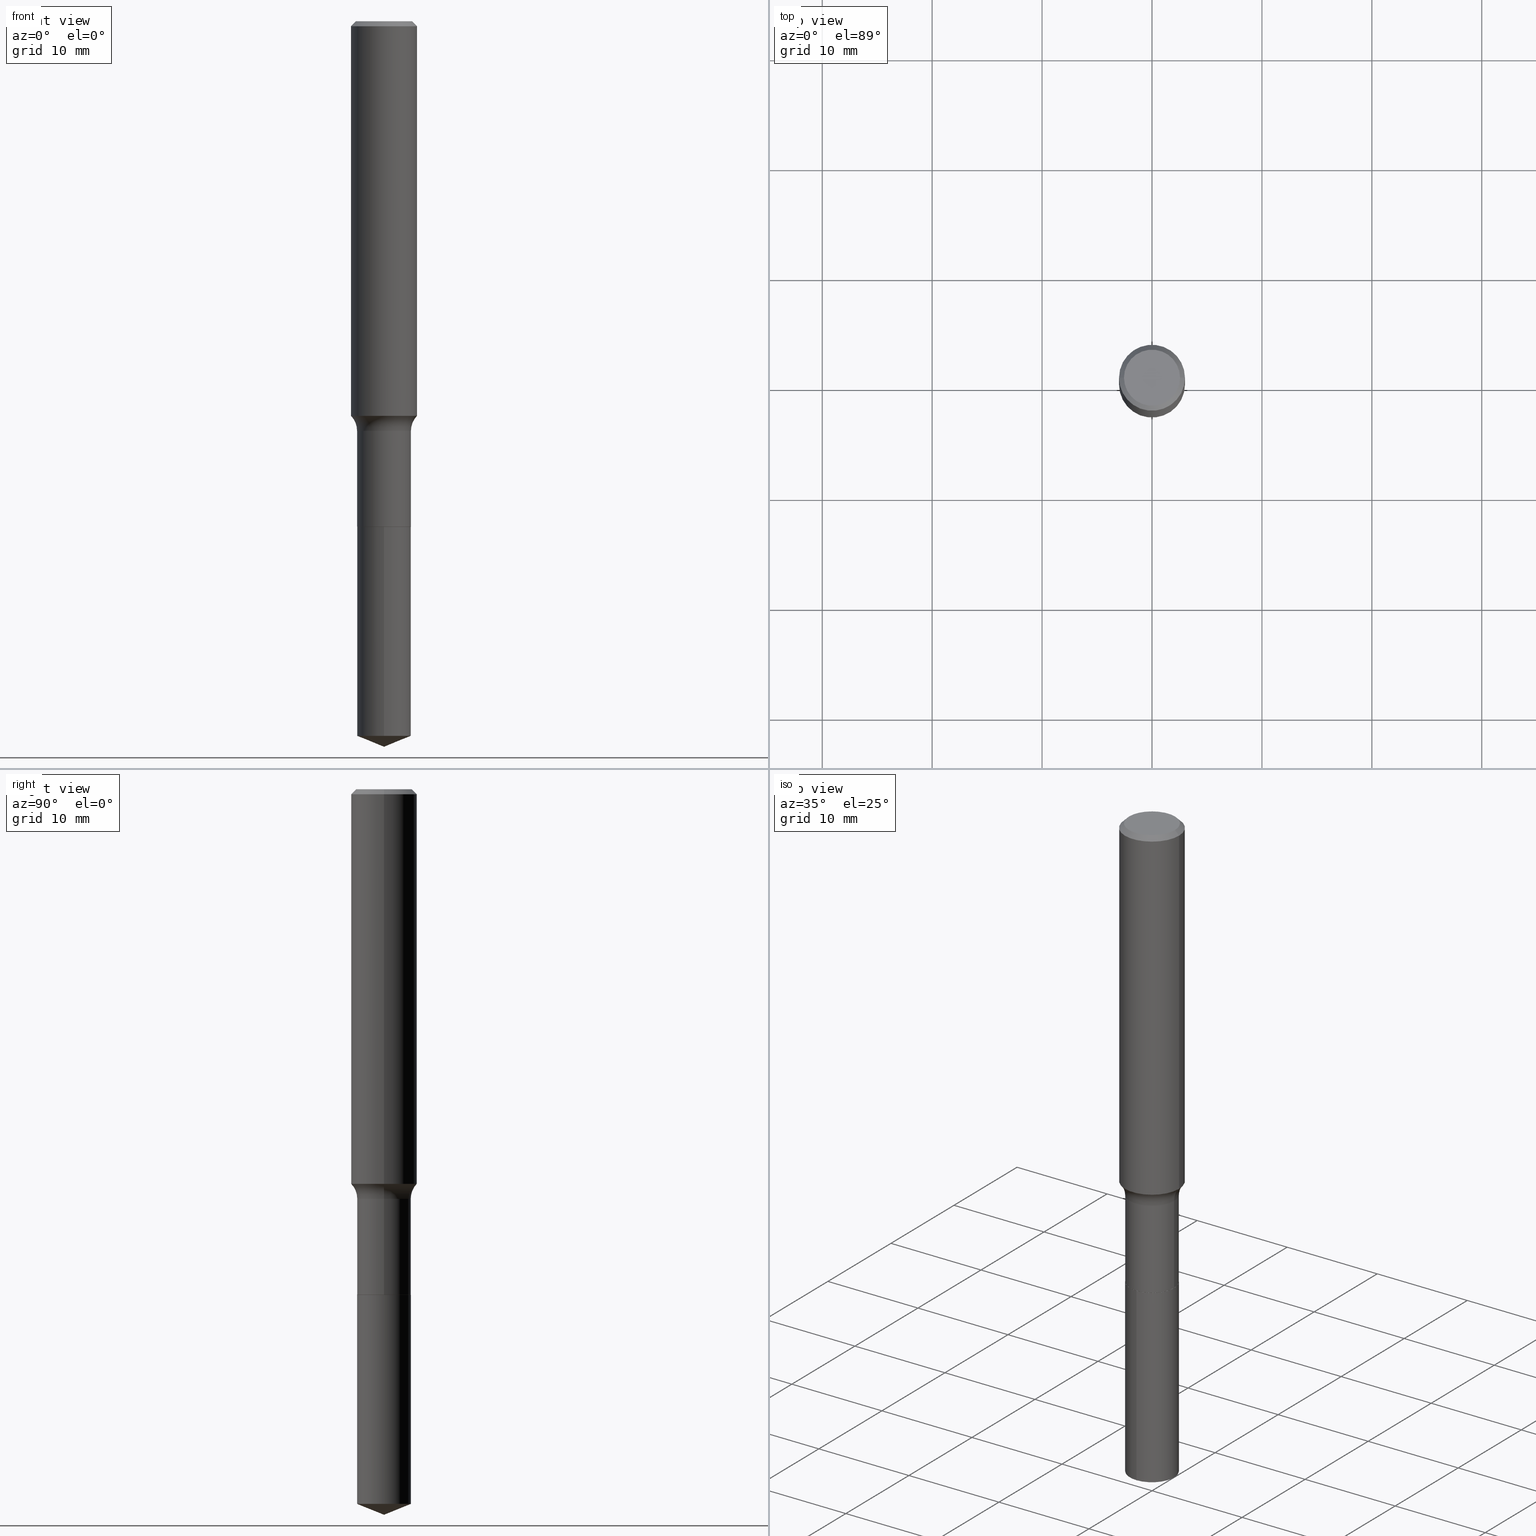
[diagram: canonical four-view strip — front | top / right | iso, engineering-drawing reading convention]
A machine part, canonical four-view strip (front | top / right | iso — engineering-drawing reading convention). The complete STEP part file that produces these views, byte-faithful:
ISO-10303-21;
HEADER;
FILE_DESCRIPTION (( 'STEP AP203' ),
    '1' );
FILE_NAME ('69139.STEP',
    '2024-04-19T17:16:54',
    ( '' ),
    ( '' ),
    'SwSTEP 2.0',
    'SolidWorks 2023',
    '' );
FILE_SCHEMA (( 'CONFIG_CONTROL_DESIGN' ));
ENDSEC;

DATA;
#1 = CALENDAR_DATE ( 2024, 19, 4 ) ;
#2 = EDGE_CURVE ( 'NONE', #235, #397, #132, .T. ) ;
#3 = DIRECTION ( 'NONE',  ( -6.982962677686265922E-15, -1.000000000000000000, 2.832398127179121732E-15 ) ) ;
#4 = EDGE_LOOP ( 'NONE', ( #110, #343, #103, #318 ) ) ;
#5 = DIRECTION ( 'NONE',  ( 1.000000000000000000, -6.982962677686269866E-15, 0.000000000000000000 ) ) ;
#6 = VERTEX_POINT ( 'NONE', #225 ) ;
#7 = ADVANCED_FACE ( 'NONE', ( #135 ), #294, .F. ) ;
#8 = DIRECTION ( 'NONE',  ( -2.445468806185136597E-29, 3.491481338843145583E-15, 1.000000000000000000 ) ) ;
#9 = CLOSED_SHELL ( 'NONE', ( #283, #28, #378, #238, #59, #24, #198, #203, #435, #426, #222, #253 ) ) ;
#10 = AXIS2_PLACEMENT_3D ( 'NONE', #52, #66, #326 ) ;
#11 = ORIENTED_EDGE ( 'NONE', *, *, #207, .T. ) ;
#12 = ORIENTED_EDGE ( 'NONE', *, *, #447, .T. ) ;
#13 = CARTESIAN_POINT ( 'NONE',  ( 6.248508729631835986E-29, -8.951246779057046401E-15, -2.559431670518199642 ) ) ;
#14 = DIRECTION ( 'NONE',  ( -6.982962677686266711E-15, -1.000000000000000000, 3.491481338843145583E-15 ) ) ;
#15 = ORIENTED_EDGE ( 'NONE', *, *, #475, .F. ) ;
#16 = PLANE ( 'NONE',  #21 ) ;
#17 = APPLICATION_CONTEXT ( 'configuration controlled 3d designs of mechanical parts and assemblies' ) ;
#18 = DIRECTION ( 'NONE',  ( -2.445468806185136877E-29, 3.491481338843145188E-15, 1.000000000000000000 ) ) ;
#19 = CARTESIAN_POINT ( 'NONE',  ( 7.015701749847187307E-46, -1.001656274515824970E-31, -2.868857591682589212E-17 ) ) ;
#20 = DIRECTION ( 'NONE',  ( 0.7071067811865454633, -7.319954787623246579E-15, -0.7071067811865493491 ) ) ;
#21 = AXIS2_PLACEMENT_3D ( 'NONE', #353, #295, #465 ) ;
#22 = APPROVAL_PERSON_ORGANIZATION ( #275, #49, #126 ) ;
#23 = FACE_OUTER_BOUND ( 'NONE', #393, .T. ) ;
#24 = ADVANCED_FACE ( 'NONE', ( #468 ), #365, .T. ) ;
#25 = CARTESIAN_POINT ( 'NONE',  ( 6.317846824160882656E-29, -9.124476934847141705E-15, -2.598399999999999821 ) ) ;
#26 = LINE ( 'NONE', #261, #133 ) ;
#27 = DIRECTION ( 'NONE',  ( -2.445468806185136597E-29, 3.491481338843145583E-15, 1.000000000000000000 ) ) ;
#28 = ADVANCED_FACE ( 'NONE', ( #107 ), #159, .T. ) ;
#29 = CARTESIAN_POINT ( 'NONE',  ( 0.1181000000000001632, -5.758737046621654966E-15, -1.413167843543948310 ) ) ;
#30 = EDGE_CURVE ( 'NONE', #87, #461, #26, .T. ) ;
#31 = AXIS2_PLACEMENT_3D ( 'NONE', #89, #169, #134 ) ;
#32 = CARTESIAN_POINT ( 'NONE',  ( -0.1180999999999999966, 7.628363003171413738E-16, -0.01771500000000011260 ) ) ;
#33 = EDGE_LOOP ( 'NONE', ( #462, #42, #356, #127 ) ) ;
#34 = DATE_TIME_ROLE ( 'classification_date' ) ;
#35 = ORIENTED_EDGE ( 'NONE', *, *, #2, .T. ) ;
#36 = PERSON_AND_ORGANIZATION_ROLE ( 'design_owner' ) ;
#37 = CIRCLE ( 'NONE', #375, 0.07799999999999999989 ) ;
#38 =( LENGTH_UNIT ( ) NAMED_UNIT ( * ) SI_UNIT ( $, .METRE. ) );
#39 = APPROVAL_ROLE ( '' ) ;
#40 = VERTEX_POINT ( 'NONE', #300 ) ;
#41 = DIRECTION ( 'NONE',  ( -0.7071067811866078578, 7.493145998870571886E-15, 0.7071067811864871766 ) ) ;
#42 = ORIENTED_EDGE ( 'NONE', *, *, #177, .T. ) ;
#43 = EDGE_CURVE ( 'NONE', #6, #461, #163, .T. ) ;
#44 = CIRCLE ( 'NONE', #330, 0.09644999999999995244 ) ;
#45 = DIRECTION ( 'NONE',  ( -2.431437355357483089E-29, 3.511575175048930123E-15, 1.000000000000000000 ) ) ;
#46 = DIRECTION ( 'NONE',  ( 1.000000000000000000, -6.982962677686265922E-15, 4.883557194083112340E-29 ) ) ;
#47 = ORIENTED_EDGE ( 'NONE', *, *, #271, .F. ) ;
#48 = DIRECTION ( 'NONE',  ( 1.000000000000000000, -6.982962677686269866E-15, 0.000000000000000000 ) ) ;
#49 = APPROVAL ( #161, 'UNSPECIFIED' ) ;
#50 = EDGE_LOOP ( 'NONE', ( #284, #145, #47 ) ) ;
#51 = COORDINATED_UNIVERSAL_TIME_OFFSET ( 5, 0, .BEHIND. ) ;
#52 = CARTESIAN_POINT ( 'NONE',  ( 4.332147990156996744E-31, -6.185159191760671627E-17, -0.01771500000000011260 ) ) ;
#53 = DIRECTION ( 'NONE',  ( 1.000000000000000000, -6.982962677686266711E-15, 0.000000000000000000 ) ) ;
#54 = CONICAL_SURFACE ( 'NONE', #432, 0.09594999999999997975, 0.7853981633975336552 ) ;
#55 = ORIENTED_EDGE ( 'NONE', *, *, #442, .T. ) ;
#56 = CC_DESIGN_APPROVAL ( #49, ( #91 ) ) ;
#57 = APPROVAL_DATE_TIME ( #209, #444 ) ;
#58 = FACE_OUTER_BOUND ( 'NONE', #90, .T. ) ;
#59 = ADVANCED_FACE ( 'NONE', ( #427 ), #93, .T. ) ;
#60 = CARTESIAN_POINT ( 'NONE',  ( 0.000000000000000000, 0.000000000000000000, 0.000000000000000000 ) ) ;
#61 = CARTESIAN_POINT ( 'NONE',  ( 0.09594999999999997975, -6.993087973568933519E-15, -1.810999999999999943 ) ) ;
#62 = CC_DESIGN_PERSON_AND_ORGANIZATION_ASSIGNMENT ( #115, #196, ( #369 ) ) ;
#63 = DIRECTION ( 'NONE',  ( 2.438088387897960049E-29, -3.491481338843145188E-15, -1.000000000000000000 ) ) ;
#64 = AXIS2_PLACEMENT_3D ( 'NONE', #366, #14, #254 ) ;
#65 = AXIS2_PLACEMENT_3D ( 'NONE', #234, #342, #477 ) ;
#66 = DIRECTION ( 'NONE',  ( 2.445468806185136597E-29, -3.491481338843145583E-15, -1.000000000000000000 ) ) ;
#67 = DIRECTION ( 'NONE',  ( -1.000000000000000000, 6.982962677686265922E-15, -4.876176775795935793E-29 ) ) ;
#68 = EDGE_CURVE ( 'NONE', #40, #116, #164, .T. ) ;
#69 = DIRECTION ( 'NONE',  ( 1.000000000000000000, -6.982962677686269866E-15, 0.000000000000000000 ) ) ;
#70 = CARTESIAN_POINT ( 'NONE',  ( -0.09644999999999996632, 6.853184686406163899E-16, -4.744312894550855181E-30 ) ) ;
#71 = DIRECTION ( 'NONE',  ( 6.588037525764800757E-15, 0.9271838545667904219, 0.3746065934159042987 ) ) ;
#72 = EDGE_LOOP ( 'NONE', ( #146, #287, #419, #202 ) ) ;
#73 = VECTOR ( 'NONE', #184, 39.37007874015748854 ) ;
#74 = DIRECTION ( 'NONE',  ( -2.445468806185136597E-29, 3.491481338843145583E-15, 1.000000000000000000 ) ) ;
#75 = CARTESIAN_POINT ( 'NONE',  ( -0.09644999999999995244, -5.036521149455529617E-15, -1.467099999999999849 ) ) ;
#76 = ADVANCED_BREP_SHAPE_REPRESENTATION ( '69139', ( #448, #131, #166 ), #228 ) ;
#77 = DATE_AND_TIME ( #315, #216 ) ;
#78 = ORIENTED_EDGE ( 'NONE', *, *, #309, .F. ) ;
#79 = ORIENTED_EDGE ( 'NONE', *, *, #289, .T. ) ;
#80 = TOROIDAL_SURFACE ( 'NONE', #125, 0.1744499999999999384, 0.07799999999999997213 ) ;
#81 = CALENDAR_DATE ( 2024, 19, 4 ) ;
#82 = AXIS2_PLACEMENT_3D ( 'NONE', #303, #74, #197 ) ;
#83 = ORIENTED_EDGE ( 'NONE', *, *, #112, .F. ) ;
#84 = ADVANCED_FACE ( 'NONE', ( #138 ), #445, .T. ) ;
#85 = PERSON_AND_ORGANIZATION_ROLE ( 'creator' ) ;
#86 = AXIS2_PLACEMENT_3D ( 'NONE', #372, #299, #191 ) ;
#87 = VERTEX_POINT ( 'NONE', #25 ) ;
#88 = CIRCLE ( 'NONE', #433, 0.09594999999999997975 ) ;
#89 = CARTESIAN_POINT ( 'NONE',  ( 6.248508729631835986E-29, -8.951246779057046401E-15, -2.559431670518199642 ) ) ;
#90 = EDGE_LOOP ( 'NONE', ( #83, #269, #391, #460 ) ) ;
#91 = PRODUCT_DEFINITION ( 'UNKNOWN', '', #376, #455 ) ;
#92 = FACE_OUTER_BOUND ( 'NONE', #472, .T. ) ;
#93 = CYLINDRICAL_SURFACE ( 'NONE', #280, 0.09644999999999996632 ) ;
#94 = DIRECTION ( 'NONE',  ( -2.445468806185136597E-29, 3.491481338843145583E-15, 1.000000000000000000 ) ) ;
#95 = EDGE_LOOP ( 'NONE', ( #377, #195, #491 ) ) ;
#96 = CARTESIAN_POINT ( 'NONE',  ( -8.938262235057461474E-28, 1.291629041461802011E-13, 36.77167874015748339 ) ) ;
#97 = FACE_OUTER_BOUND ( 'NONE', #406, .T. ) ;
#98 = AXIS2_PLACEMENT_3D ( 'NONE', #13, #437, #463 ) ;
#99 = AXIS2_PLACEMENT_3D ( 'NONE', #371, #151, #267 ) ;
#100 = VERTEX_POINT ( 'NONE', #75 ) ;
#101 = CARTESIAN_POINT ( 'NONE',  ( 0.1180999999999999966, -8.720764054544245267E-16, -0.01771500000000011260 ) ) ;
#102 = CC_DESIGN_PERSON_AND_ORGANIZATION_ASSIGNMENT ( #121, #277, ( #376 ) ) ;
#103 = ORIENTED_EDGE ( 'NONE', *, *, #2, .F. ) ;
#104 = DIRECTION ( 'NONE',  ( 6.982962677686265922E-15, 1.000000000000000000, -3.511575175048929728E-15 ) ) ;
#105 = CARTESIAN_POINT ( 'NONE',  ( 0.09644999999999996632, -6.994833714238355023E-15, -1.810499999999999998 ) ) ;
#106 = EDGE_CURVE ( 'NONE', #338, #245, #389, .T. ) ;
#107 = FACE_OUTER_BOUND ( 'NONE', #420, .T. ) ;
#108 = CARTESIAN_POINT ( 'NONE',  ( -6.735067502627961581E-16, -0.09645000000000632234, -1.810999999999999721 ) ) ;
#109 = CIRCLE ( 'NONE', #64, 0.07799999999999999989 ) ;
#110 = ORIENTED_EDGE ( 'NONE', *, *, #271, .T. ) ;
#111 = CIRCLE ( 'NONE', #65, 0.1181000000000001632 ) ;
#112 = EDGE_CURVE ( 'NONE', #245, #276, #221, .T. ) ;
#113 = DIRECTION ( 'NONE',  ( 1.000000000000000000, -6.982962677686267499E-15, 0.000000000000000000 ) ) ;
#114 = CARTESIAN_POINT ( 'NONE',  ( 0.09594999999999997975, -6.993087973568933519E-15, -1.810999999999999943 ) ) ;
#115 = PERSON_AND_ORGANIZATION ( #492, #341 ) ;
#116 = VERTEX_POINT ( 'NONE', #348 ) ;
#117 = EDGE_CURVE ( 'NONE', #6, #397, #344, .T. ) ;
#118 = AXIS2_PLACEMENT_3D ( 'NONE', #331, #370, #436 ) ;
#119 = ORIENTED_EDGE ( 'NONE', *, *, #68, .T. ) ;
#120 = CARTESIAN_POINT ( 'NONE',  ( -0.09594999999999997975, -5.641306949683120011E-15, -1.810999999999999943 ) ) ;
#121 = PERSON_AND_ORGANIZATION ( #492, #341 ) ;
#122 = EDGE_LOOP ( 'NONE', ( #141, #129, #282, #413 ) ) ;
#123 = APPLICATION_PROTOCOL_DEFINITION ( 'international standard', 'config_control_design', 1994, #17 ) ;
#124 = AXIS2_PLACEMENT_3D ( 'NONE', #470, #297, #142 ) ;
#125 = AXIS2_PLACEMENT_3D ( 'NONE', #260, #139, #430 ) ;
#126 = APPROVAL_ROLE ( '' ) ;
#127 = ORIENTED_EDGE ( 'NONE', *, *, #212, .F. ) ;
#128 = UNCERTAINTY_MEASURE_WITH_UNIT (LENGTH_MEASURE( 1.000000000000000082E-05 ), #310, 'distance_accuracy_value', 'NONE');
#129 = ORIENTED_EDGE ( 'NONE', *, *, #458, .F. ) ;
#130 = CARTESIAN_POINT ( 'NONE',  ( -0.09644999999999996632, -5.036521149455529617E-15, -1.810499999999999998 ) ) ;
#131 = MANIFOLD_SOLID_BREP ( 'Body-Move/Copy2[2]', #9 ) ;
#132 = CIRCLE ( 'NONE', #162, 0.09644999999999999407 ) ;
#133 = VECTOR ( 'NONE', #149, 39.37007874015748143 ) ;
#134 = DIRECTION ( 'NONE',  ( -6.982962677686265922E-15, -1.000000000000000000, 5.664796254358243463E-15 ) ) ;
#135 = FACE_OUTER_BOUND ( 'NONE', #410, .T. ) ;
#136 = CARTESIAN_POINT ( 'NONE',  ( -0.1744499999999999384, -3.882810469683283777E-15, -1.467099999999999849 ) ) ;
#137 = ORIENTED_EDGE ( 'NONE', *, *, #219, .F. ) ;
#138 = FACE_OUTER_BOUND ( 'NONE', #95, .T. ) ;
#139 = DIRECTION ( 'NONE',  ( -2.445468806185136597E-29, 3.491481338843145583E-15, 1.000000000000000000 ) ) ;
#140 = ORIENTED_EDGE ( 'NONE', *, *, #212, .T. ) ;
#141 = ORIENTED_EDGE ( 'NONE', *, *, #201, .F. ) ;
#142 = DIRECTION ( 'NONE',  ( 1.000000000000000000, -6.982962677686267499E-15, 4.876176775795936353E-29 ) ) ;
#143 = CARTESIAN_POINT ( 'NONE',  ( 4.428744008001282238E-29, -6.323072704644935995E-15, -1.810999999999999943 ) ) ;
#144 = VECTOR ( 'NONE', #270, 39.37007874015748143 ) ;
#145 = ORIENTED_EDGE ( 'NONE', *, *, #382, .T. ) ;
#146 = ORIENTED_EDGE ( 'NONE', *, *, #292, .F. ) ;
#147 = FACE_OUTER_BOUND ( 'NONE', #50, .T. ) ;
#148 = EDGE_CURVE ( 'NONE', #399, #276, #317, .T. ) ;
#149 = DIRECTION ( 'NONE',  ( -6.474490251793188884E-15, -0.9271838545667878684, 0.3746065934159109045 ) ) ;
#150 = LINE ( 'NONE', #32, #73 ) ;
#151 = DIRECTION ( 'NONE',  ( -2.431437355357483089E-29, 3.511575175048930123E-15, 1.000000000000000000 ) ) ;
#152 = AXIS2_PLACEMENT_3D ( 'NONE', #402, #265, #104 ) ;
#153 = AXIS2_PLACEMENT_3D ( 'NONE', #464, #94, #220 ) ;
#154 = CC_DESIGN_APPROVAL ( #444, ( #369 ) ) ;
#155 = CARTESIAN_POINT ( 'NONE',  ( 6.853184686406793016E-16, 0.09644999999999366580, -1.811000000000000165 ) ) ;
#156 = DIRECTION ( 'NONE',  ( 0.7071067811866078578, -2.468850131082888544E-15, 0.7071067811864871766 ) ) ;
#157 = CARTESIAN_POINT ( 'NONE',  ( 6.853184686406608620E-16, 0.09644999999999369356, -1.811000000000000165 ) ) ;
#158 = DIRECTION ( 'NONE',  ( 1.000000000000000000, 0.000000000000000000, 0.000000000000000000 ) ) ;
#159 = CONICAL_SURFACE ( 'NONE', #10, 0.1180999999999999966, 0.7853981633974456145 ) ;
#160 = ORIENTED_EDGE ( 'NONE', *, *, #106, .F. ) ;
#161 = APPROVAL_STATUS ( 'not_yet_approved' ) ;
#162 = AXIS2_PLACEMENT_3D ( 'NONE', #170, #336, #230 ) ;
#163 = CIRCLE ( 'NONE', #98, 0.09645000000000000795 ) ;
#164 = CIRCLE ( 'NONE', #248, 0.1003850000000000159 ) ;
#165 = DATE_AND_TIME ( #81, #362 ) ;
#166 = AXIS2_PLACEMENT_3D ( 'NONE', #346, #414, #158 ) ;
#167 = ORIENTED_EDGE ( 'NONE', *, *, #479, .F. ) ;
#168 = ORIENTED_EDGE ( 'NONE', *, *, #488, .F. ) ;
#169 = DIRECTION ( 'NONE',  ( -2.431437355357483089E-29, 3.511575175048930123E-15, 1.000000000000000000 ) ) ;
#170 = CARTESIAN_POINT ( 'NONE',  ( 4.428744008001282238E-29, -6.323072704644935995E-15, -1.810999999999999943 ) ) ;
#171 = CARTESIAN_POINT ( 'NONE',  ( 3.587747285554213356E-29, -5.122352272216778509E-15, -1.467099999999999849 ) ) ;
#172 = VECTOR ( 'NONE', #293, 39.37007874015748143 ) ;
#173 = CIRCLE ( 'NONE', #99, 0.09644999999999999407 ) ;
#174 = DIRECTION ( 'NONE',  ( -2.445468806185136597E-29, 3.491481338843145583E-15, 1.000000000000000000 ) ) ;
#175 = DIRECTION ( 'NONE',  ( -2.445468806185136597E-29, 3.491481338843145583E-15, 1.000000000000000000 ) ) ;
#176 = ORIENTED_EDGE ( 'NONE', *, *, #207, .F. ) ;
#177 = EDGE_CURVE ( 'NONE', #335, #240, #387, .T. ) ;
#178 = FACE_OUTER_BOUND ( 'NONE', #4, .T. ) ;
#179 = LINE ( 'NONE', #319, #439 ) ;
#180 = ORIENTED_EDGE ( 'NONE', *, *, #177, .F. ) ;
#181 = ORIENTED_EDGE ( 'NONE', *, *, #309, .T. ) ;
#182 = CC_DESIGN_PERSON_AND_ORGANIZATION_ASSIGNMENT ( #418, #85, ( #91 ) ) ;
#183 = DIRECTION ( 'NONE',  ( -2.445468806185136597E-29, 3.491481338843145583E-15, 1.000000000000000000 ) ) ;
#184 = DIRECTION ( 'NONE',  ( -0.7071067811865454633, 2.468850131082235761E-15, -0.7071067811865493491 ) ) ;
#185 = CIRCLE ( 'NONE', #368, 0.1180999999999999966 ) ;
#186 = ADVANCED_FACE ( 'NONE', ( #178 ), #324, .T. ) ;
#187 = DIRECTION ( 'NONE',  ( 1.000000000000000000, -6.982962677686270655E-15, 0.000000000000000000 ) ) ;
#188 = CARTESIAN_POINT ( 'NONE',  ( 4.428744008001282238E-29, -6.323072704644935995E-15, -1.810999999999999943 ) ) ;
#189 = DIRECTION ( 'NONE',  ( 1.000000000000000000, -6.982962677686269866E-15, 0.000000000000000000 ) ) ;
#190 = ORIENTED_EDGE ( 'NONE', *, *, #148, .T. ) ;
#191 = DIRECTION ( 'NONE',  ( 1.000000000000000000, -6.982962677686266711E-15, 4.876176775795936353E-29 ) ) ;
#192 = AXIS2_PLACEMENT_3D ( 'NONE', #210, #45, #3 ) ;
#193 = EDGE_CURVE ( 'NONE', #276, #399, #381, .T. ) ;
#194 = LINE ( 'NONE', #114, #481 ) ;
#195 = ORIENTED_EDGE ( 'NONE', *, *, #30, .T. ) ;
#196 = PERSON_AND_ORGANIZATION_ROLE ( 'classification_officer' ) ;
#197 = DIRECTION ( 'NONE',  ( 1.000000000000000000, -6.982962677686266711E-15, 4.875668750515085695E-29 ) ) ;
#198 = ADVANCED_FACE ( 'NONE', ( #425 ), #340, .F. ) ;
#199 = VECTOR ( 'NONE', #408, 39.37007874015748143 ) ;
#200 = AXIS2_PLACEMENT_3D ( 'NONE', #405, #226, #473 ) ;
#201 = EDGE_CURVE ( 'NONE', #335, #100, #37, .T. ) ;
#202 = ORIENTED_EDGE ( 'NONE', *, *, #289, .F. ) ;
#203 = ADVANCED_FACE ( 'NONE', ( #92 ), #396, .T. ) ;
#204 = EDGE_LOOP ( 'NONE', ( #206, #446, #279, #251 ) ) ;
#205 = CARTESIAN_POINT ( 'NONE',  ( 4.428744008001282238E-29, -6.323072704644935995E-15, -1.810999999999999943 ) ) ;
#206 = ORIENTED_EDGE ( 'NONE', *, *, #106, .T. ) ;
#207 = EDGE_CURVE ( 'NONE', #240, #257, #214, .T. ) ;
#208 = DIRECTION ( 'NONE',  ( 1.000000000000000000, -6.982962677686266711E-15, 4.876176775795936353E-29 ) ) ;
#209 = DATE_AND_TIME ( #1, #323 ) ;
#210 = CARTESIAN_POINT ( 'NONE',  ( 4.428744008001282238E-29, -6.323072704644935995E-15, -1.810999999999999943 ) ) ;
#211 = EDGE_LOOP ( 'NONE', ( #190, #466, #263, #474 ) ) ;
#212 = EDGE_CURVE ( 'NONE', #305, #257, #217, .T. ) ;
#213 = CARTESIAN_POINT ( 'NONE',  ( 4.427521273598189436E-29, -6.321326963975514491E-15, -1.810499999999999998 ) ) ;
#214 = CIRCLE ( 'NONE', #322, 0.1180999999999999966 ) ;
#215 = DIRECTION ( 'NONE',  ( 1.000000000000000000, -6.982962677686266711E-15, 4.875668750515085695E-29 ) ) ;
#216 = LOCAL_TIME ( 13, 16, 54.00000000000000000, #314 ) ;
#217 = LINE ( 'NONE', #363, #172 ) ;
#218 = ORIENTED_EDGE ( 'NONE', *, *, #442, .F. ) ;
#219 = EDGE_CURVE ( 'NONE', #305, #360, #109, .T. ) ;
#220 = DIRECTION ( 'NONE',  ( 1.000000000000000000, -6.982962677686265922E-15, 0.000000000000000000 ) ) ;
#221 = LINE ( 'NONE', #120, #422 ) ;
#222 = ADVANCED_FACE ( 'NONE', ( #321 ), #16, .F. ) ;
#223 = FACE_OUTER_BOUND ( 'NONE', #33, .T. ) ;
#224 = CC_DESIGN_DATE_AND_TIME_ASSIGNMENT ( #237, #34, ( #369 ) ) ;
#225 = CARTESIAN_POINT ( 'NONE',  ( 6.853184686406793016E-16, 0.09644999999999109841, -2.559431670518200086 ) ) ;
#226 = DIRECTION ( 'NONE',  ( 2.445468806185136597E-29, -3.491481338843145583E-15, -1.000000000000000000 ) ) ;
#227 = VECTOR ( 'NONE', #71, 39.37007874015748854 ) ;
#228 =( GEOMETRIC_REPRESENTATION_CONTEXT ( 3 ) GLOBAL_UNCERTAINTY_ASSIGNED_CONTEXT ( ( #128 ) ) GLOBAL_UNIT_ASSIGNED_CONTEXT ( ( #310, #486, #278 ) ) REPRESENTATION_CONTEXT ( 'NONE', 'WORKASPACE' ) );
#229 = CARTESIAN_POINT ( 'NONE',  ( -0.1181000000000000799, 8.391509709326788873E-16, -5.809262341591047988E-30 ) ) ;
#230 = DIRECTION ( 'NONE',  ( -6.982962677686265133E-15, -1.000000000000000000, 2.832398127179122126E-15 ) ) ;
#231 = CARTESIAN_POINT ( 'NONE',  ( 3.507850874923593654E-46, -5.008281372579124849E-32, -1.434428795841294606E-17 ) ) ;
#232 = CYLINDRICAL_SURFACE ( 'NONE', #86, 0.1181000000000000799 ) ;
#233 = EDGE_CURVE ( 'NONE', #399, #360, #179, .T. ) ;
#234 = CARTESIAN_POINT ( 'NONE',  ( 3.455857879290642834E-29, -4.934049154386905126E-15, -1.413167843543948310 ) ) ;
#235 = VERTEX_POINT ( 'NONE', #327 ) ;
#236 = CONICAL_SURFACE ( 'NONE', #490, 0.09594999999999997975, 0.7853981633975336552 ) ;
#237 = DATE_AND_TIME ( #407, #259 ) ;
#238 = ADVANCED_FACE ( 'NONE', ( #97 ), #80, .F. ) ;
#239 = APPROVAL_DATE_TIME ( #77, #49 ) ;
#240 = VERTEX_POINT ( 'NONE', #398 ) ;
#241 = PERSON_AND_ORGANIZATION ( #492, #341 ) ;
#242 = AXIS2_PLACEMENT_3D ( 'NONE', #329, #8, #208 ) ;
#243 = CIRCLE ( 'NONE', #268, 0.1181000000000001632 ) ;
#244 = APPROVAL_DATE_TIME ( #484, #431 ) ;
#245 = VERTEX_POINT ( 'NONE', #392 ) ;
#246 = APPROVAL_STATUS ( 'not_yet_approved' ) ;
#247 = FACE_OUTER_BOUND ( 'NONE', #358, .T. ) ;
#248 = AXIS2_PLACEMENT_3D ( 'NONE', #19, #183, #215 ) ;
#249 = APPROVAL_PERSON_ORGANIZATION ( #478, #444, #454 ) ;
#250 = CARTESIAN_POINT ( 'NONE',  ( 4.428744008001282238E-29, -6.323072704644935995E-15, -1.810999999999999943 ) ) ;
#251 = ORIENTED_EDGE ( 'NONE', *, *, #411, .F. ) ;
#252 = SHAPE_DEFINITION_REPRESENTATION ( #429, #76 ) ;
#253 = ADVANCED_FACE ( 'NONE', ( #58 ), #54, .T. ) ;
#254 = DIRECTION ( 'NONE',  ( 1.000000000000000000, -6.982962677686258033E-15, 0.000000000000000000 ) ) ;
#255 = DIRECTION ( 'NONE',  ( -2.445468806185136597E-29, 3.491481338843145583E-15, 1.000000000000000000 ) ) ;
#256 = DIRECTION ( 'NONE',  ( -1.000000000000000000, 7.105427357600997914E-15, 0.000000000000000000 ) ) ;
#257 = VERTEX_POINT ( 'NONE', #434 ) ;
#258 = AXIS2_PLACEMENT_3D ( 'NONE', #205, #428, #291 ) ;
#259 = LOCAL_TIME ( 13, 16, 54.00000000000000000, #273 ) ;
#260 = CARTESIAN_POINT ( 'NONE',  ( 3.587747285554213356E-29, -5.122352272216778509E-15, -1.467099999999999849 ) ) ;
#261 = CARTESIAN_POINT ( 'NONE',  ( 6.317846824160882656E-29, -9.124476934847141705E-15, -2.598399999999999821 ) ) ;
#262 = CARTESIAN_POINT ( 'NONE',  ( 3.455857879290642834E-29, -4.934049154386905126E-15, -1.413167843543948310 ) ) ;
#263 = ORIENTED_EDGE ( 'NONE', *, *, #328, .F. ) ;
#264 = ADVANCED_FACE ( 'NONE', ( #247 ), #388, .T. ) ;
#265 = DIRECTION ( 'NONE',  ( 2.431437355357483089E-29, -3.511575175048929728E-15, -1.000000000000000000 ) ) ;
#266 = DIRECTION ( 'NONE',  ( -2.445468806185136597E-29, 3.491481338843145583E-15, 1.000000000000000000 ) ) ;
#267 = DIRECTION ( 'NONE',  ( -6.982962677686265133E-15, -1.000000000000000000, 2.832398127179122126E-15 ) ) ;
#268 = AXIS2_PLACEMENT_3D ( 'NONE', #262, #367, #187 ) ;
#269 = ORIENTED_EDGE ( 'NONE', *, *, #479, .T. ) ;
#270 = DIRECTION ( 'NONE',  ( -2.431437355357483089E-29, 3.511575175048929728E-15, 1.000000000000000000 ) ) ;
#271 = EDGE_CURVE ( 'NONE', #461, #6, #452, .T. ) ;
#272 = FACE_OUTER_BOUND ( 'NONE', #316, .T. ) ;
#273 = COORDINATED_UNIVERSAL_TIME_OFFSET ( 5, 0, .BEHIND. ) ;
#274 = AXIS2_PLACEMENT_3D ( 'NONE', #188, #334, #69 ) ;
#275 = PERSON_AND_ORGANIZATION ( #492, #341 ) ;
#276 = VERTEX_POINT ( 'NONE', #130 ) ;
#277 = PERSON_AND_ORGANIZATION_ROLE ( 'creator' ) ;
#278 =( NAMED_UNIT ( * ) SI_UNIT ( $, .STERADIAN. ) SOLID_ANGLE_UNIT ( ) );
#279 = ORIENTED_EDGE ( 'NONE', *, *, #148, .F. ) ;
#280 = AXIS2_PLACEMENT_3D ( 'NONE', #60, #255, #395 ) ;
#281 = APPROVAL_PERSON_ORGANIZATION ( #412, #431, #39 ) ;
#282 = ORIENTED_EDGE ( 'NONE', *, *, #219, .T. ) ;
#283 = ADVANCED_FACE ( 'NONE', ( #286 ), #236, .T. ) ;
#284 = ORIENTED_EDGE ( 'NONE', *, *, #30, .F. ) ;
#285 = PRODUCT_RELATED_PRODUCT_CATEGORY ( 'detail', '', ( #290 ) ) ;
#286 = FACE_OUTER_BOUND ( 'NONE', #204, .T. ) ;
#287 = ORIENTED_EDGE ( 'NONE', *, *, #193, .T. ) ;
#288 = AXIS2_PLACEMENT_3D ( 'NONE', #213, #175, #359 ) ;
#289 = EDGE_CURVE ( 'NONE', #100, #360, #44, .T. ) ;
#290 = PRODUCT ( '69139', '69139', '', ( #313 ) ) ;
#291 = DIRECTION ( 'NONE',  ( -6.982962677686265922E-15, -1.000000000000000000, 2.832398127179121732E-15 ) ) ;
#292 = EDGE_CURVE ( 'NONE', #276, #100, #471, .T. ) ;
#293 = DIRECTION ( 'NONE',  ( -2.445468806185136877E-29, 3.491481338843145188E-15, 1.000000000000000000 ) ) ;
#294 = PLANE ( 'NONE',  #152 ) ;
#295 = DIRECTION ( 'NONE',  ( -2.438088387897960049E-29, 3.491481338843145188E-15, 1.000000000000000000 ) ) ;
#296 = VECTOR ( 'NONE', #440, 39.37007874015748143 ) ;
#297 = DIRECTION ( 'NONE',  ( -2.445468806185136597E-29, 3.491481338843145583E-15, 1.000000000000000000 ) ) ;
#298 = DIRECTION ( 'NONE',  ( -2.445468806185136597E-29, 3.491481338843145583E-15, 1.000000000000000000 ) ) ;
#299 = DIRECTION ( 'NONE',  ( -2.445468806185136597E-29, 3.491481338843145583E-15, 1.000000000000000000 ) ) ;
#300 = CARTESIAN_POINT ( 'NONE',  ( 0.1003850000000000159, -7.803837484803599345E-16, -2.868857591682071522E-17 ) ) ;
#301 = DIRECTION ( 'NONE',  ( -2.445468806185136597E-29, 3.491481338843145583E-15, 1.000000000000000000 ) ) ;
#302 = DIRECTION ( 'NONE',  ( -2.431437355357483089E-29, 3.511575175048930123E-15, 1.000000000000000000 ) ) ;
#303 = CARTESIAN_POINT ( 'NONE',  ( 7.015701749847187307E-46, -1.001656274515824970E-31, -2.868857591682589212E-17 ) ) ;
#304 = AXIS2_PLACEMENT_3D ( 'NONE', #231, #63, #67 ) ;
#305 = VERTEX_POINT ( 'NONE', #29 ) ;
#306 = CC_DESIGN_DATE_AND_TIME_ASSIGNMENT ( #165, #449, ( #91 ) ) ;
#307 = CARTESIAN_POINT ( 'NONE',  ( -0.1181000000000001632, -4.094898183454225351E-15, -1.413167843543948310 ) ) ;
#308 = LINE ( 'NONE', #101, #383 ) ;
#309 = EDGE_CURVE ( 'NONE', #116, #240, #150, .T. ) ;
#310 =( CONVERSION_BASED_UNIT ( 'INCH', #450 ) LENGTH_UNIT ( ) NAMED_UNIT ( #373 ) );
#311 = AXIS2_PLACEMENT_3D ( 'NONE', #476, #301, #113 ) ;
#312 = LOCAL_TIME ( 13, 16, 54.00000000000000000, #443 ) ;
#313 = MECHANICAL_CONTEXT ( 'NONE', #17, 'mechanical' ) ;
#314 = COORDINATED_UNIVERSAL_TIME_OFFSET ( 5, 0, .BEHIND. ) ;
#315 = CALENDAR_DATE ( 2024, 19, 4 ) ;
#316 = EDGE_LOOP ( 'NONE', ( #349, #168, #181, #11 ) ) ;
#317 = CIRCLE ( 'NONE', #288, 0.09644999999999996632 ) ;
#318 = ORIENTED_EDGE ( 'NONE', *, *, #347, .F. ) ;
#319 = CARTESIAN_POINT ( 'NONE',  ( 0.09644999999999996632, -6.735067502628402357E-16, 4.703072500255178901E-30 ) ) ;
#320 = EDGE_LOOP ( 'NONE', ( #160, #167 ) ) ;
#321 = FACE_OUTER_BOUND ( 'NONE', #320, .T. ) ;
#322 = AXIS2_PLACEMENT_3D ( 'NONE', #456, #174, #53 ) ;
#323 = LOCAL_TIME ( 13, 16, 54.00000000000000000, #51 ) ;
#324 = CYLINDRICAL_SURFACE ( 'NONE', #258, 0.09645000000000000795 ) ;
#325 = ORIENTED_EDGE ( 'NONE', *, *, #475, .T. ) ;
#326 = DIRECTION ( 'NONE',  ( -1.000000000000000000, 6.982962677686266711E-15, 0.000000000000000000 ) ) ;
#327 = CARTESIAN_POINT ( 'NONE',  ( -6.735067502627959609E-16, -0.09645000000000630846, -1.810999999999999721 ) ) ;
#328 = EDGE_CURVE ( 'NONE', #360, #100, #351, .T. ) ;
#329 = CARTESIAN_POINT ( 'NONE',  ( 0.000000000000000000, 0.000000000000000000, 0.000000000000000000 ) ) ;
#330 = AXIS2_PLACEMENT_3D ( 'NONE', #171, #469, #404 ) ;
#331 = CARTESIAN_POINT ( 'NONE',  ( -8.938262235057461474E-28, 1.291629041461802011E-13, 36.77167874015748339 ) ) ;
#332 = ORIENTED_EDGE ( 'NONE', *, *, #68, .F. ) ;
#333 = CARTESIAN_POINT ( 'NONE',  ( -6.735067502627781129E-16, -0.09645000000000898688, -2.559431670518198754 ) ) ;
#334 = DIRECTION ( 'NONE',  ( -2.445468806185136597E-29, 3.491481338843145583E-15, 1.000000000000000000 ) ) ;
#335 = VERTEX_POINT ( 'NONE', #307 ) ;
#336 = DIRECTION ( 'NONE',  ( -2.431437355357483089E-29, 3.511575175048930123E-15, 1.000000000000000000 ) ) ;
#337 = CARTESIAN_POINT ( 'NONE',  ( 4.332147990156996744E-31, -6.185159191760671627E-17, -0.01771500000000011260 ) ) ;
#338 = VERTEX_POINT ( 'NONE', #61 ) ;
#339 = CARTESIAN_POINT ( 'NONE',  ( 6.369114387261840438E-29, -9.051697060109789399E-15, -2.598399999999999821 ) ) ;
#340 = TOROIDAL_SURFACE ( 'NONE', #416, 0.1744499999999999384, 0.07799999999999997213 ) ;
#341 = ORGANIZATION ( 'UNSPECIFIED', 'UNSPECIFIED', '' ) ;
#342 = DIRECTION ( 'NONE',  ( -2.445468806185136597E-29, 3.491481338843145583E-15, 1.000000000000000000 ) ) ;
#343 = ORIENTED_EDGE ( 'NONE', *, *, #117, .T. ) ;
#344 = LINE ( 'NONE', #157, #199 ) ;
#345 = DIRECTION ( 'NONE',  ( -6.982962677686266711E-15, -1.000000000000000000, 3.498761904101788509E-15 ) ) ;
#346 = CARTESIAN_POINT ( 'NONE',  ( 0.000000000000000000, 0.000000000000000000, 0.000000000000000000 ) ) ;
#347 = EDGE_CURVE ( 'NONE', #461, #235, #400, .T. ) ;
#348 = CARTESIAN_POINT ( 'NONE',  ( -0.1003850000000000159, 7.319105043583386689E-16, -2.868857591683090262E-17 ) ) ;
#349 = ORIENTED_EDGE ( 'NONE', *, *, #447, .F. ) ;
#350 = PERSON_AND_ORGANIZATION ( #492, #341 ) ;
#351 = CIRCLE ( 'NONE', #311, 0.09644999999999995244 ) ;
#352 = ORIENTED_EDGE ( 'NONE', *, *, #117, .F. ) ;
#353 = CARTESIAN_POINT ( 'NONE',  ( 4.428744008001282238E-29, -6.323072704644935995E-15, -1.810999999999999943 ) ) ;
#354 = ORIENTED_EDGE ( 'NONE', *, *, #488, .T. ) ;
#355 = DIRECTION ( 'NONE',  ( -2.445468806185136597E-29, 3.491481338843145583E-15, 1.000000000000000000 ) ) ;
#356 = ORIENTED_EDGE ( 'NONE', *, *, #409, .F. ) ;
#357 = DIRECTION ( 'NONE',  ( -2.445468806185136597E-29, 3.491481338843145583E-15, 1.000000000000000000 ) ) ;
#358 = EDGE_LOOP ( 'NONE', ( #352, #451, #386, #15 ) ) ;
#359 = DIRECTION ( 'NONE',  ( 1.000000000000000000, -6.982962677686265922E-15, 0.000000000000000000 ) ) ;
#360 = VERTEX_POINT ( 'NONE', #374 ) ;
#361 = AXIS2_PLACEMENT_3D ( 'NONE', #96, #302, #345 ) ;
#362 = LOCAL_TIME ( 13, 16, 54.00000000000000000, #489 ) ;
#363 = CARTESIAN_POINT ( 'NONE',  ( 0.1181000000000000799, -8.246878922347486570E-16, 5.758764772215004644E-30 ) ) ;
#364 = ADVANCED_FACE ( 'NONE', ( #147 ), #467, .T. ) ;
#365 = CYLINDRICAL_SURFACE ( 'NONE', #124, 0.09644999999999996632 ) ;
#366 = CARTESIAN_POINT ( 'NONE',  ( 0.1744499999999999384, -6.340530111339147875E-15, -1.467099999999999849 ) ) ;
#367 = DIRECTION ( 'NONE',  ( -2.445468806185136597E-29, 3.491481338843145583E-15, 1.000000000000000000 ) ) ;
#368 = AXIS2_PLACEMENT_3D ( 'NONE', #337, #266, #441 ) ;
#369 = SECURITY_CLASSIFICATION ( '', '', #380 ) ;
#370 = DIRECTION ( 'NONE',  ( -2.431437355357483089E-29, 3.511575175048930123E-15, 1.000000000000000000 ) ) ;
#371 = CARTESIAN_POINT ( 'NONE',  ( 4.428744008001282238E-29, -6.323072704644935995E-15, -1.810999999999999943 ) ) ;
#372 = CARTESIAN_POINT ( 'NONE',  ( 0.000000000000000000, 0.000000000000000000, 0.000000000000000000 ) ) ;
#373 = DIMENSIONAL_EXPONENTS ( 1.000000000000000000, 0.000000000000000000, 0.000000000000000000, 0.000000000000000000, 0.000000000000000000, 0.000000000000000000, 0.000000000000000000 ) ;
#374 = CARTESIAN_POINT ( 'NONE',  ( 0.09644999999999995244, -5.795859022479618251E-15, -1.467099999999999849 ) ) ;
#375 = AXIS2_PLACEMENT_3D ( 'NONE', #136, #421, #256 ) ;
#376 = PRODUCT_DEFINITION_FORMATION_WITH_SPECIFIED_SOURCE ( 'ANY', '', #290, .NOT_KNOWN. ) ;
#377 = ORIENTED_EDGE ( 'NONE', *, *, #382, .F. ) ;
#378 = ADVANCED_FACE ( 'NONE', ( #223 ), #232, .T. ) ;
#379 = APPLICATION_PROTOCOL_DEFINITION ( 'international standard', 'config_control_design', 1994, #487 ) ;
#380 = SECURITY_CLASSIFICATION_LEVEL ( 'unclassified' ) ;
#381 = CIRCLE ( 'NONE', #153, 0.09644999999999996632 ) ;
#382 = EDGE_CURVE ( 'NONE', #87, #6, #438, .T. ) ;
#383 = VECTOR ( 'NONE', #20, 39.37007874015748854 ) ;
#384 = PERSON_AND_ORGANIZATION_ROLE ( 'design_supplier' ) ;
#385 = ORIENTED_EDGE ( 'NONE', *, *, #409, .T. ) ;
#386 = ORIENTED_EDGE ( 'NONE', *, *, #347, .T. ) ;
#387 = LINE ( 'NONE', #229, #457 ) ;
#388 = CYLINDRICAL_SURFACE ( 'NONE', #192, 0.09645000000000000795 ) ;
#389 = CIRCLE ( 'NONE', #274, 0.09594999999999997975 ) ;
#390 = CONICAL_SURFACE ( 'NONE', #200, 0.1180999999999999966, 0.7853981633974456145 ) ;
#391 = ORIENTED_EDGE ( 'NONE', *, *, #411, .T. ) ;
#392 = CARTESIAN_POINT ( 'NONE',  ( -0.09594999999999997975, -5.638657722509008809E-15, -1.810999999999999943 ) ) ;
#393 = EDGE_LOOP ( 'NONE', ( #354, #119 ) ) ;
#394 = DIRECTION ( 'NONE',  ( -2.445468806185136877E-29, 3.491481338843145188E-15, 1.000000000000000000 ) ) ;
#395 = DIRECTION ( 'NONE',  ( 1.000000000000000000, -6.982962677686267499E-15, 4.876176775795936353E-29 ) ) ;
#396 = CYLINDRICAL_SURFACE ( 'NONE', #242, 0.1181000000000000799 ) ;
#397 = VERTEX_POINT ( 'NONE', #155 ) ;
#398 = CARTESIAN_POINT ( 'NONE',  ( -0.1180999999999999966, -1.658799402219576084E-15, -0.01771500000000011260 ) ) ;
#399 = VERTEX_POINT ( 'NONE', #105 ) ;
#400 = LINE ( 'NONE', #108, #144 ) ;
#401 = PLANE ( 'NONE',  #304 ) ;
#402 = CARTESIAN_POINT ( 'NONE',  ( 4.428744008001282238E-29, -6.323072704644935995E-15, -1.810999999999999943 ) ) ;
#403 = CARTESIAN_POINT ( 'NONE',  ( 4.428744008001282238E-29, -6.323072704644935995E-15, -1.810999999999999943 ) ) ;
#404 = DIRECTION ( 'NONE',  ( 1.000000000000000000, -6.982962677686267499E-15, 0.000000000000000000 ) ) ;
#405 = CARTESIAN_POINT ( 'NONE',  ( 4.332147990156996744E-31, -6.185159191760671627E-17, -0.01771500000000011260 ) ) ;
#406 = EDGE_LOOP ( 'NONE', ( #218, #485, #79, #137 ) ) ;
#407 = CALENDAR_DATE ( 2024, 19, 4 ) ;
#408 = DIRECTION ( 'NONE',  ( -2.431437355357483089E-29, 3.511575175048929728E-15, 1.000000000000000000 ) ) ;
#409 = EDGE_CURVE ( 'NONE', #257, #240, #185, .T. ) ;
#410 = EDGE_LOOP ( 'NONE', ( #35, #325 ) ) ;
#411 = EDGE_CURVE ( 'NONE', #338, #399, #194, .T. ) ;
#412 = PERSON_AND_ORGANIZATION ( #492, #341 ) ;
#413 = ORIENTED_EDGE ( 'NONE', *, *, #328, .T. ) ;
#414 = DIRECTION ( 'NONE',  ( 0.000000000000000000, 0.000000000000000000, 1.000000000000000000 ) ) ;
#415 = CC_DESIGN_PERSON_AND_ORGANIZATION_ASSIGNMENT ( #241, #384, ( #376 ) ) ;
#416 = AXIS2_PLACEMENT_3D ( 'NONE', #459, #357, #46 ) ;
#417 = CC_DESIGN_SECURITY_CLASSIFICATION ( #369, ( #376 ) ) ;
#418 = PERSON_AND_ORGANIZATION ( #492, #341 ) ;
#419 = ORIENTED_EDGE ( 'NONE', *, *, #233, .T. ) ;
#420 = EDGE_LOOP ( 'NONE', ( #332, #12, #385, #78 ) ) ;
#421 = DIRECTION ( 'NONE',  ( 7.105427357601001859E-15, 1.000000000000000000, -3.491481338843145583E-15 ) ) ;
#422 = VECTOR ( 'NONE', #41, 39.37007874015748143 ) ;
#423 = CC_DESIGN_PERSON_AND_ORGANIZATION_ASSIGNMENT ( #350, #36, ( #290 ) ) ;
#424 = APPROVAL_STATUS ( 'not_yet_approved' ) ;
#425 = FACE_OUTER_BOUND ( 'NONE', #122, .T. ) ;
#426 = ADVANCED_FACE ( 'NONE', ( #23 ), #401, .F. ) ;
#427 = FACE_OUTER_BOUND ( 'NONE', #211, .T. ) ;
#428 = DIRECTION ( 'NONE',  ( -2.431437355357483089E-29, 3.511575175048930123E-15, 1.000000000000000000 ) ) ;
#429 = PRODUCT_DEFINITION_SHAPE ( 'NONE', 'NONE',  #91 ) ;
#430 = DIRECTION ( 'NONE',  ( 1.000000000000000000, -6.982962677686265922E-15, 4.883557194083112340E-29 ) ) ;
#431 = APPROVAL ( #246, 'UNSPECIFIED' ) ;
#432 = AXIS2_PLACEMENT_3D ( 'NONE', #143, #298, #48 ) ;
#433 = AXIS2_PLACEMENT_3D ( 'NONE', #403, #27, #189 ) ;
#434 = CARTESIAN_POINT ( 'NONE',  ( 0.1180999999999999966, -8.865394841523547570E-16, -0.01771500000000011260 ) ) ;
#435 = ADVANCED_FACE ( 'NONE', ( #272 ), #390, .T. ) ;
#436 = DIRECTION ( 'NONE',  ( -6.982962677686266711E-15, -1.000000000000000000, 3.498761904101788509E-15 ) ) ;
#437 = DIRECTION ( 'NONE',  ( -2.431437355357483089E-29, 3.511575175048930123E-15, 1.000000000000000000 ) ) ;
#438 = LINE ( 'NONE', #339, #227 ) ;
#439 = VECTOR ( 'NONE', #394, 39.37007874015748143 ) ;
#440 = DIRECTION ( 'NONE',  ( -2.445468806185136877E-29, 3.491481338843145188E-15, 1.000000000000000000 ) ) ;
#441 = DIRECTION ( 'NONE',  ( 1.000000000000000000, -6.982962677686266711E-15, 0.000000000000000000 ) ) ;
#442 = EDGE_CURVE ( 'NONE', #335, #305, #111, .T. ) ;
#443 = COORDINATED_UNIVERSAL_TIME_OFFSET ( 5, 0, .BEHIND. ) ;
#444 = APPROVAL ( #424, 'UNSPECIFIED' ) ;
#445 = CONICAL_SURFACE ( 'NONE', #361, 97.44436430772951496, 1.186823891356148852 ) ;
#446 = ORIENTED_EDGE ( 'NONE', *, *, #112, .T. ) ;
#447 = EDGE_CURVE ( 'NONE', #40, #257, #308, .T. ) ;
#448 = MANIFOLD_SOLID_BREP ( 'Body-Move/Copy2[1]', #480 ) ;
#449 = DATE_TIME_ROLE ( 'creation_date' ) ;
#450 = LENGTH_MEASURE_WITH_UNIT ( LENGTH_MEASURE( 0.02539999999999999897 ), #38 );
#451 = ORIENTED_EDGE ( 'NONE', *, *, #43, .T. ) ;
#452 = CIRCLE ( 'NONE', #31, 0.09645000000000000795 ) ;
#453 = CIRCLE ( 'NONE', #82, 0.1003850000000000159 ) ;
#454 = APPROVAL_ROLE ( '' ) ;
#455 = DESIGN_CONTEXT ( 'detailed design', #487, 'design' ) ;
#456 = CARTESIAN_POINT ( 'NONE',  ( 4.332147990156996744E-31, -6.185159191760671627E-17, -0.01771500000000011260 ) ) ;
#457 = VECTOR ( 'NONE', #18, 39.37007874015748143 ) ;
#458 = EDGE_CURVE ( 'NONE', #305, #335, #243, .T. ) ;
#459 = CARTESIAN_POINT ( 'NONE',  ( 3.587747285554213356E-29, -5.122352272216778509E-15, -1.467099999999999849 ) ) ;
#460 = ORIENTED_EDGE ( 'NONE', *, *, #193, .F. ) ;
#461 = VERTEX_POINT ( 'NONE', #333 ) ;
#462 = ORIENTED_EDGE ( 'NONE', *, *, #458, .T. ) ;
#463 = DIRECTION ( 'NONE',  ( -6.982962677686265922E-15, -1.000000000000000000, 5.664796254358243463E-15 ) ) ;
#464 = CARTESIAN_POINT ( 'NONE',  ( 4.427521273598189436E-29, -6.321326963975514491E-15, -1.810499999999999998 ) ) ;
#465 = DIRECTION ( 'NONE',  ( 1.000000000000000000, -6.982962677686265922E-15, 4.876176775795935793E-29 ) ) ;
#466 = ORIENTED_EDGE ( 'NONE', *, *, #292, .T. ) ;
#467 = CONICAL_SURFACE ( 'NONE', #118, 97.44436430772951496, 1.186823891356148852 ) ;
#468 = FACE_OUTER_BOUND ( 'NONE', #72, .T. ) ;
#469 = DIRECTION ( 'NONE',  ( -2.445468806185136597E-29, 3.491481338843145583E-15, 1.000000000000000000 ) ) ;
#470 = CARTESIAN_POINT ( 'NONE',  ( 0.000000000000000000, 0.000000000000000000, 0.000000000000000000 ) ) ;
#471 = LINE ( 'NONE', #70, #296 ) ;
#472 = EDGE_LOOP ( 'NONE', ( #180, #55, #140, #176 ) ) ;
#473 = DIRECTION ( 'NONE',  ( -1.000000000000000000, 6.982962677686266711E-15, 0.000000000000000000 ) ) ;
#474 = ORIENTED_EDGE ( 'NONE', *, *, #233, .F. ) ;
#475 = EDGE_CURVE ( 'NONE', #397, #235, #173, .T. ) ;
#476 = CARTESIAN_POINT ( 'NONE',  ( 3.587747285554213356E-29, -5.122352272216778509E-15, -1.467099999999999849 ) ) ;
#477 = DIRECTION ( 'NONE',  ( 1.000000000000000000, -6.982962677686270655E-15, 0.000000000000000000 ) ) ;
#478 = PERSON_AND_ORGANIZATION ( #492, #341 ) ;
#479 = EDGE_CURVE ( 'NONE', #245, #338, #88, .T. ) ;
#480 = CLOSED_SHELL ( 'NONE', ( #186, #364, #84, #264, #7 ) ) ;
#481 = VECTOR ( 'NONE', #156, 39.37007874015748143 ) ;
#482 = CALENDAR_DATE ( 2024, 19, 4 ) ;
#483 = CC_DESIGN_APPROVAL ( #431, ( #376 ) ) ;
#484 = DATE_AND_TIME ( #482, #312 ) ;
#485 = ORIENTED_EDGE ( 'NONE', *, *, #201, .T. ) ;
#486 =( NAMED_UNIT ( * ) PLANE_ANGLE_UNIT ( ) SI_UNIT ( $, .RADIAN. ) );
#487 = APPLICATION_CONTEXT ( 'configuration controlled 3d designs of mechanical parts and assemblies' ) ;
#488 = EDGE_CURVE ( 'NONE', #116, #40, #453, .T. ) ;
#489 = COORDINATED_UNIVERSAL_TIME_OFFSET ( 5, 0, .BEHIND. ) ;
#490 = AXIS2_PLACEMENT_3D ( 'NONE', #250, #355, #5 ) ;
#491 = ORIENTED_EDGE ( 'NONE', *, *, #43, .F. ) ;
#492 = PERSON ( 'UNSPECIFIED', 'UNSPECIFIED', 'UNSPECIFIED', ('UNSPECIFIED'), ('UNSPECIFIED'), ('UNSPECIFIED') ) ;
ENDSEC;
END-ISO-10303-21;
